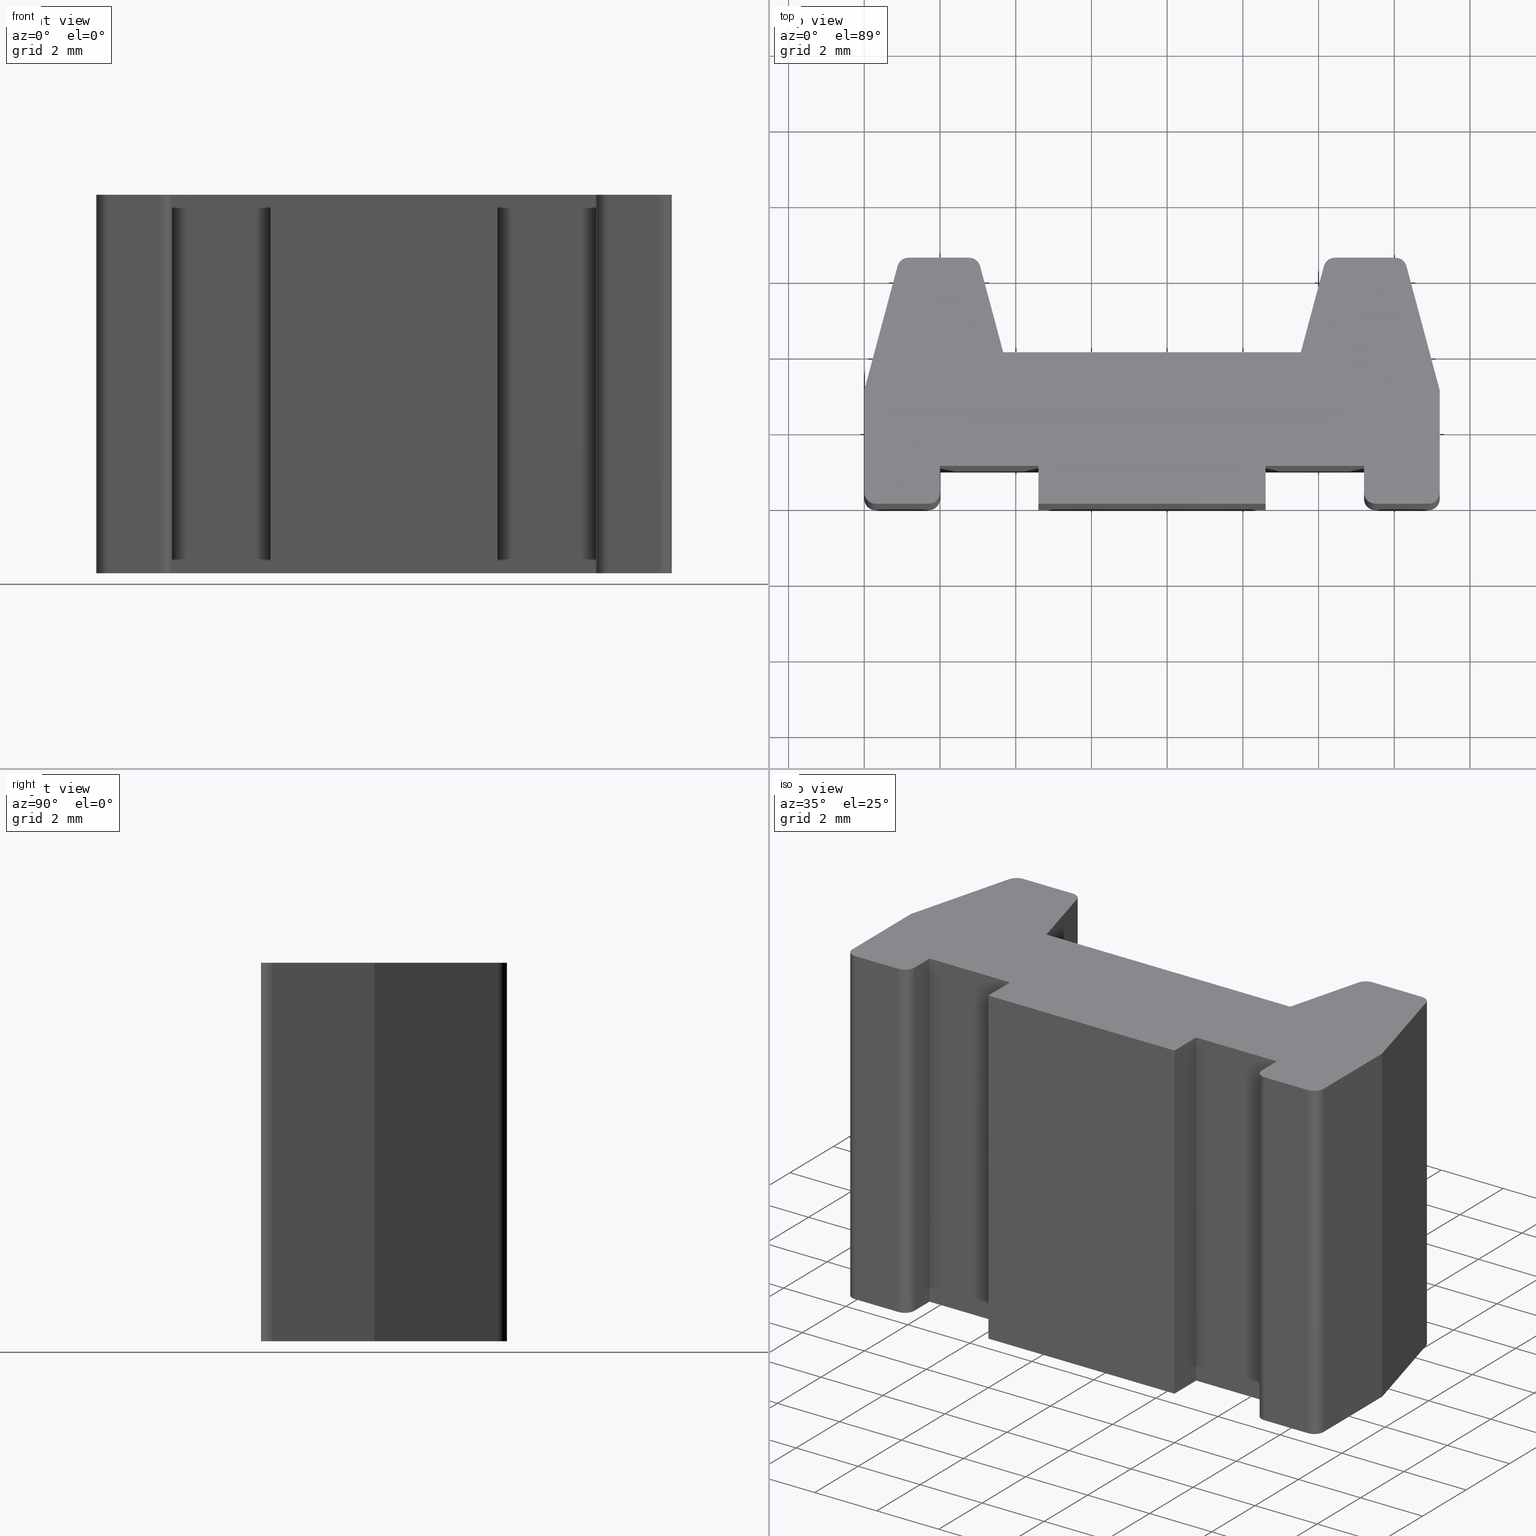
[diagram: canonical four-view strip — front | top / right | iso, engineering-drawing reading convention]
A machine part, canonical four-view strip (front | top / right | iso — engineering-drawing reading convention). The complete STEP part file that produces these views, byte-faithful:
ISO-10303-21;
HEADER;
/* Generated by software containing ST-Developer
 * from STEP Tools, Inc. (www.steptools.com) 
 */

FILE_DESCRIPTION(
/* description */ (''),
/* implementation_level */ '2;1');

FILE_NAME(
/* name */ 'E_3_01_10_05_00_WKZ-0094.stp',
/* time_stamp */ '2025-11-24T11:30:09+01:00',
/* author */ ('d.fischer'),
/* organization */ (''),
/* preprocessor_version */ 'ST-DEVELOPER v20',
/* originating_system */ 'Autodesk Inventor 2025',
/* authorisation */ '');

FILE_SCHEMA (('AUTOMOTIVE_DESIGN { 1 0 10303 214 3 1 1 }'));
ENDSEC;

DATA;
#10=MECHANICAL_DESIGN_GEOMETRIC_PRESENTATION_REPRESENTATION('',(#13),#934);
#11=SHAPE_REPRESENTATION_RELATIONSHIP('SRR','None',#941,#12);
#12=ADVANCED_BREP_SHAPE_REPRESENTATION('',(#14),#933);
#13=STYLED_ITEM('',(#950),#14);
#14=MANIFOLD_SOLID_BREP('Volumenk\X\F6rper1',#553);
#15=PLANE('',#579);
#16=PLANE('',#587);
#17=PLANE('',#592);
#18=PLANE('',#597);
#19=PLANE('',#600);
#20=PLANE('',#603);
#21=PLANE('',#606);
#22=PLANE('',#607);
#23=PLANE('',#608);
#24=PLANE('',#609);
#25=PLANE('',#610);
#26=PLANE('',#611);
#27=PLANE('',#612);
#28=PLANE('',#613);
#29=PLANE('',#614);
#30=PLANE('',#615);
#31=PLANE('',#616);
#32=PLANE('',#617);
#33=PLANE('',#618);
#34=PLANE('',#619);
#35=FACE_OUTER_BOUND('',#63,.T.);
#36=FACE_OUTER_BOUND('',#64,.T.);
#37=FACE_OUTER_BOUND('',#65,.T.);
#38=FACE_OUTER_BOUND('',#66,.T.);
#39=FACE_OUTER_BOUND('',#67,.T.);
#40=FACE_OUTER_BOUND('',#68,.T.);
#41=FACE_OUTER_BOUND('',#69,.T.);
#42=FACE_OUTER_BOUND('',#70,.T.);
#43=FACE_OUTER_BOUND('',#71,.T.);
#44=FACE_OUTER_BOUND('',#72,.T.);
#45=FACE_OUTER_BOUND('',#73,.T.);
#46=FACE_OUTER_BOUND('',#74,.T.);
#47=FACE_OUTER_BOUND('',#75,.T.);
#48=FACE_OUTER_BOUND('',#76,.T.);
#49=FACE_OUTER_BOUND('',#77,.T.);
#50=FACE_OUTER_BOUND('',#78,.T.);
#51=FACE_OUTER_BOUND('',#79,.T.);
#52=FACE_OUTER_BOUND('',#80,.T.);
#53=FACE_OUTER_BOUND('',#81,.T.);
#54=FACE_OUTER_BOUND('',#82,.T.);
#55=FACE_OUTER_BOUND('',#83,.T.);
#56=FACE_OUTER_BOUND('',#84,.T.);
#57=FACE_OUTER_BOUND('',#85,.T.);
#58=FACE_OUTER_BOUND('',#86,.T.);
#59=FACE_OUTER_BOUND('',#87,.T.);
#60=FACE_OUTER_BOUND('',#88,.T.);
#61=FACE_OUTER_BOUND('',#89,.T.);
#62=FACE_OUTER_BOUND('',#90,.T.);
#63=EDGE_LOOP('',(#361,#362,#363,#364));
#64=EDGE_LOOP('',(#365,#366,#367,#368,#369,#370,#371,#372,#373,#374,#375,
#376,#377,#378,#379,#380,#381,#382,#383,#384,#385,#386,#387,#388,#389,#390));
#65=EDGE_LOOP('',(#391,#392,#393,#394));
#66=EDGE_LOOP('',(#395,#396,#397,#398));
#67=EDGE_LOOP('',(#399,#400,#401,#402));
#68=EDGE_LOOP('',(#403,#404,#405,#406));
#69=EDGE_LOOP('',(#407,#408,#409,#410));
#70=EDGE_LOOP('',(#411,#412,#413,#414));
#71=EDGE_LOOP('',(#415,#416,#417,#418));
#72=EDGE_LOOP('',(#419,#420,#421,#422));
#73=EDGE_LOOP('',(#423,#424,#425,#426));
#74=EDGE_LOOP('',(#427,#428,#429,#430));
#75=EDGE_LOOP('',(#431,#432,#433,#434));
#76=EDGE_LOOP('',(#435,#436,#437,#438));
#77=EDGE_LOOP('',(#439,#440,#441,#442));
#78=EDGE_LOOP('',(#443,#444,#445,#446));
#79=EDGE_LOOP('',(#447,#448,#449,#450));
#80=EDGE_LOOP('',(#451,#452,#453,#454));
#81=EDGE_LOOP('',(#455,#456,#457,#458));
#82=EDGE_LOOP('',(#459,#460,#461,#462));
#83=EDGE_LOOP('',(#463,#464,#465,#466));
#84=EDGE_LOOP('',(#467,#468,#469,#470));
#85=EDGE_LOOP('',(#471,#472,#473,#474));
#86=EDGE_LOOP('',(#475,#476,#477,#478));
#87=EDGE_LOOP('',(#479,#480,#481,#482));
#88=EDGE_LOOP('',(#483,#484,#485,#486));
#89=EDGE_LOOP('',(#487,#488,#489,#490));
#90=EDGE_LOOP('',(#491,#492,#493,#494,#495,#496,#497,#498,#499,#500,#501,
#502,#503,#504,#505,#506,#507,#508,#509,#510,#511,#512,#513,#514,#515,#516));
#91=LINE('',#778,#153);
#92=LINE('',#781,#154);
#93=LINE('',#784,#155);
#94=LINE('',#788,#156);
#95=LINE('',#790,#157);
#96=LINE('',#794,#158);
#97=LINE('',#798,#159);
#98=LINE('',#800,#160);
#99=LINE('',#802,#161);
#100=LINE('',#806,#162);
#101=LINE('',#810,#163);
#102=LINE('',#812,#164);
#103=LINE('',#816,#165);
#104=LINE('',#820,#166);
#105=LINE('',#822,#167);
#106=LINE('',#824,#168);
#107=LINE('',#826,#169);
#108=LINE('',#828,#170);
#109=LINE('',#830,#171);
#110=LINE('',#831,#172);
#111=LINE('',#834,#173);
#112=LINE('',#835,#174);
#113=LINE('',#839,#175);
#114=LINE('',#844,#176);
#115=LINE('',#845,#177);
#116=LINE('',#848,#178);
#117=LINE('',#849,#179);
#118=LINE('',#853,#180);
#119=LINE('',#858,#181);
#120=LINE('',#859,#182);
#121=LINE('',#862,#183);
#122=LINE('',#863,#184);
#123=LINE('',#867,#185);
#124=LINE('',#870,#186);
#125=LINE('',#871,#187);
#126=LINE('',#876,#188);
#127=LINE('',#877,#189);
#128=LINE('',#880,#190);
#129=LINE('',#881,#191);
#130=LINE('',#885,#192);
#131=LINE('',#888,#193);
#132=LINE('',#889,#194);
#133=LINE('',#891,#195);
#134=LINE('',#894,#196);
#135=LINE('',#895,#197);
#136=LINE('',#897,#198);
#137=LINE('',#900,#199);
#138=LINE('',#901,#200);
#139=LINE('',#903,#201);
#140=LINE('',#906,#202);
#141=LINE('',#907,#203);
#142=LINE('',#910,#204);
#143=LINE('',#911,#205);
#144=LINE('',#914,#206);
#145=LINE('',#915,#207);
#146=LINE('',#918,#208);
#147=LINE('',#919,#209);
#148=LINE('',#922,#210);
#149=LINE('',#923,#211);
#150=LINE('',#926,#212);
#151=LINE('',#927,#213);
#152=LINE('',#929,#214);
#153=VECTOR('',#626,10.);
#154=VECTOR('',#629,10.);
#155=VECTOR('',#632,10.);
#156=VECTOR('',#635,10.);
#157=VECTOR('',#636,10.);
#158=VECTOR('',#639,10.);
#159=VECTOR('',#642,10.);
#160=VECTOR('',#643,10.);
#161=VECTOR('',#644,10.);
#162=VECTOR('',#647,10.);
#163=VECTOR('',#650,10.);
#164=VECTOR('',#651,10.);
#165=VECTOR('',#654,10.);
#166=VECTOR('',#657,10.);
#167=VECTOR('',#658,10.);
#168=VECTOR('',#659,10.);
#169=VECTOR('',#660,10.);
#170=VECTOR('',#661,10.);
#171=VECTOR('',#662,10.);
#172=VECTOR('',#663,10.);
#173=VECTOR('',#666,10.);
#174=VECTOR('',#667,10.);
#175=VECTOR('',#672,10.);
#176=VECTOR('',#677,10.);
#177=VECTOR('',#678,10.);
#178=VECTOR('',#681,10.);
#179=VECTOR('',#682,10.);
#180=VECTOR('',#687,10.);
#181=VECTOR('',#692,10.);
#182=VECTOR('',#693,10.);
#183=VECTOR('',#696,10.);
#184=VECTOR('',#697,10.);
#185=VECTOR('',#702,10.);
#186=VECTOR('',#705,10.);
#187=VECTOR('',#706,10.);
#188=VECTOR('',#711,10.);
#189=VECTOR('',#712,10.);
#190=VECTOR('',#715,10.);
#191=VECTOR('',#716,10.);
#192=VECTOR('',#721,10.);
#193=VECTOR('',#724,10.);
#194=VECTOR('',#725,10.);
#195=VECTOR('',#728,10.);
#196=VECTOR('',#731,10.);
#197=VECTOR('',#732,10.);
#198=VECTOR('',#735,10.);
#199=VECTOR('',#738,10.);
#200=VECTOR('',#739,10.);
#201=VECTOR('',#742,10.);
#202=VECTOR('',#745,10.);
#203=VECTOR('',#746,10.);
#204=VECTOR('',#749,10.);
#205=VECTOR('',#750,10.);
#206=VECTOR('',#753,10.);
#207=VECTOR('',#754,10.);
#208=VECTOR('',#757,10.);
#209=VECTOR('',#758,10.);
#210=VECTOR('',#761,10.);
#211=VECTOR('',#762,10.);
#212=VECTOR('',#765,10.);
#213=VECTOR('',#766,10.);
#214=VECTOR('',#769,10.);
#215=CIRCLE('',#577,0.3);
#216=CIRCLE('',#578,0.3);
#217=CIRCLE('',#580,0.3);
#218=CIRCLE('',#581,0.3);
#219=CIRCLE('',#582,0.3);
#220=CIRCLE('',#583,0.3);
#221=CIRCLE('',#584,0.3);
#222=CIRCLE('',#585,0.3);
#223=CIRCLE('',#586,0.3);
#224=CIRCLE('',#589,0.3);
#225=CIRCLE('',#591,0.3);
#226=CIRCLE('',#594,0.3);
#227=CIRCLE('',#596,0.3);
#228=CIRCLE('',#599,0.3);
#229=CIRCLE('',#602,0.3);
#230=CIRCLE('',#605,0.3);
#231=VERTEX_POINT('',#774);
#232=VERTEX_POINT('',#775);
#233=VERTEX_POINT('',#777);
#234=VERTEX_POINT('',#779);
#235=VERTEX_POINT('',#783);
#236=VERTEX_POINT('',#785);
#237=VERTEX_POINT('',#787);
#238=VERTEX_POINT('',#789);
#239=VERTEX_POINT('',#791);
#240=VERTEX_POINT('',#793);
#241=VERTEX_POINT('',#795);
#242=VERTEX_POINT('',#797);
#243=VERTEX_POINT('',#799);
#244=VERTEX_POINT('',#801);
#245=VERTEX_POINT('',#803);
#246=VERTEX_POINT('',#805);
#247=VERTEX_POINT('',#807);
#248=VERTEX_POINT('',#809);
#249=VERTEX_POINT('',#811);
#250=VERTEX_POINT('',#813);
#251=VERTEX_POINT('',#815);
#252=VERTEX_POINT('',#817);
#253=VERTEX_POINT('',#819);
#254=VERTEX_POINT('',#821);
#255=VERTEX_POINT('',#823);
#256=VERTEX_POINT('',#825);
#257=VERTEX_POINT('',#827);
#258=VERTEX_POINT('',#829);
#259=VERTEX_POINT('',#833);
#260=VERTEX_POINT('',#837);
#261=VERTEX_POINT('',#841);
#262=VERTEX_POINT('',#842);
#263=VERTEX_POINT('',#847);
#264=VERTEX_POINT('',#851);
#265=VERTEX_POINT('',#855);
#266=VERTEX_POINT('',#856);
#267=VERTEX_POINT('',#861);
#268=VERTEX_POINT('',#865);
#269=VERTEX_POINT('',#869);
#270=VERTEX_POINT('',#873);
#271=VERTEX_POINT('',#874);
#272=VERTEX_POINT('',#879);
#273=VERTEX_POINT('',#883);
#274=VERTEX_POINT('',#887);
#275=VERTEX_POINT('',#893);
#276=VERTEX_POINT('',#899);
#277=VERTEX_POINT('',#905);
#278=VERTEX_POINT('',#909);
#279=VERTEX_POINT('',#913);
#280=VERTEX_POINT('',#917);
#281=VERTEX_POINT('',#921);
#282=VERTEX_POINT('',#925);
#283=EDGE_CURVE('',#231,#232,#215,.T.);
#284=EDGE_CURVE('',#232,#233,#91,.T.);
#285=EDGE_CURVE('',#233,#234,#216,.T.);
#286=EDGE_CURVE('',#234,#231,#92,.T.);
#287=EDGE_CURVE('',#235,#233,#93,.T.);
#288=EDGE_CURVE('',#236,#235,#217,.T.);
#289=EDGE_CURVE('',#237,#236,#94,.T.);
#290=EDGE_CURVE('',#238,#237,#95,.T.);
#291=EDGE_CURVE('',#239,#238,#218,.T.);
#292=EDGE_CURVE('',#240,#239,#96,.T.);
#293=EDGE_CURVE('',#241,#240,#219,.T.);
#294=EDGE_CURVE('',#242,#241,#97,.T.);
#295=EDGE_CURVE('',#243,#242,#98,.T.);
#296=EDGE_CURVE('',#244,#243,#99,.T.);
#297=EDGE_CURVE('',#245,#244,#220,.T.);
#298=EDGE_CURVE('',#246,#245,#100,.T.);
#299=EDGE_CURVE('',#247,#246,#221,.T.);
#300=EDGE_CURVE('',#248,#247,#101,.T.);
#301=EDGE_CURVE('',#249,#248,#102,.T.);
#302=EDGE_CURVE('',#250,#249,#222,.T.);
#303=EDGE_CURVE('',#251,#250,#103,.T.);
#304=EDGE_CURVE('',#252,#251,#223,.T.);
#305=EDGE_CURVE('',#253,#252,#104,.T.);
#306=EDGE_CURVE('',#254,#253,#105,.T.);
#307=EDGE_CURVE('',#255,#254,#106,.T.);
#308=EDGE_CURVE('',#256,#255,#107,.T.);
#309=EDGE_CURVE('',#257,#256,#108,.T.);
#310=EDGE_CURVE('',#258,#257,#109,.T.);
#311=EDGE_CURVE('',#234,#258,#110,.T.);
#312=EDGE_CURVE('',#232,#259,#111,.T.);
#313=EDGE_CURVE('',#235,#259,#112,.T.);
#314=EDGE_CURVE('',#259,#260,#224,.T.);
#315=EDGE_CURVE('',#260,#236,#113,.T.);
#316=EDGE_CURVE('',#261,#262,#225,.T.);
#317=EDGE_CURVE('',#262,#250,#114,.T.);
#318=EDGE_CURVE('',#249,#261,#115,.T.);
#319=EDGE_CURVE('',#262,#263,#116,.T.);
#320=EDGE_CURVE('',#251,#263,#117,.T.);
#321=EDGE_CURVE('',#263,#264,#226,.T.);
#322=EDGE_CURVE('',#264,#252,#118,.T.);
#323=EDGE_CURVE('',#265,#266,#227,.T.);
#324=EDGE_CURVE('',#266,#247,#119,.T.);
#325=EDGE_CURVE('',#246,#265,#120,.T.);
#326=EDGE_CURVE('',#267,#245,#121,.T.);
#327=EDGE_CURVE('',#267,#265,#122,.T.);
#328=EDGE_CURVE('',#268,#267,#228,.T.);
#329=EDGE_CURVE('',#244,#268,#123,.T.);
#330=EDGE_CURVE('',#243,#269,#124,.T.);
#331=EDGE_CURVE('',#269,#268,#125,.T.);
#332=EDGE_CURVE('',#270,#271,#229,.T.);
#333=EDGE_CURVE('',#271,#241,#126,.T.);
#334=EDGE_CURVE('',#240,#270,#127,.T.);
#335=EDGE_CURVE('',#272,#239,#128,.T.);
#336=EDGE_CURVE('',#272,#270,#129,.T.);
#337=EDGE_CURVE('',#273,#272,#230,.T.);
#338=EDGE_CURVE('',#238,#273,#130,.T.);
#339=EDGE_CURVE('',#260,#274,#131,.T.);
#340=EDGE_CURVE('',#237,#274,#132,.T.);
#341=EDGE_CURVE('',#274,#273,#133,.T.);
#342=EDGE_CURVE('',#271,#275,#134,.T.);
#343=EDGE_CURVE('',#242,#275,#135,.T.);
#344=EDGE_CURVE('',#275,#269,#136,.T.);
#345=EDGE_CURVE('',#266,#276,#137,.T.);
#346=EDGE_CURVE('',#248,#276,#138,.T.);
#347=EDGE_CURVE('',#276,#261,#139,.T.);
#348=EDGE_CURVE('',#264,#277,#140,.T.);
#349=EDGE_CURVE('',#253,#277,#141,.T.);
#350=EDGE_CURVE('',#277,#278,#142,.T.);
#351=EDGE_CURVE('',#254,#278,#143,.T.);
#352=EDGE_CURVE('',#278,#279,#144,.T.);
#353=EDGE_CURVE('',#255,#279,#145,.T.);
#354=EDGE_CURVE('',#279,#280,#146,.T.);
#355=EDGE_CURVE('',#256,#280,#147,.T.);
#356=EDGE_CURVE('',#280,#281,#148,.T.);
#357=EDGE_CURVE('',#257,#281,#149,.T.);
#358=EDGE_CURVE('',#281,#282,#150,.T.);
#359=EDGE_CURVE('',#258,#282,#151,.T.);
#360=EDGE_CURVE('',#282,#231,#152,.T.);
#361=ORIENTED_EDGE('',*,*,#283,.T.);
#362=ORIENTED_EDGE('',*,*,#284,.T.);
#363=ORIENTED_EDGE('',*,*,#285,.T.);
#364=ORIENTED_EDGE('',*,*,#286,.T.);
#365=ORIENTED_EDGE('',*,*,#285,.F.);
#366=ORIENTED_EDGE('',*,*,#287,.F.);
#367=ORIENTED_EDGE('',*,*,#288,.F.);
#368=ORIENTED_EDGE('',*,*,#289,.F.);
#369=ORIENTED_EDGE('',*,*,#290,.F.);
#370=ORIENTED_EDGE('',*,*,#291,.F.);
#371=ORIENTED_EDGE('',*,*,#292,.F.);
#372=ORIENTED_EDGE('',*,*,#293,.F.);
#373=ORIENTED_EDGE('',*,*,#294,.F.);
#374=ORIENTED_EDGE('',*,*,#295,.F.);
#375=ORIENTED_EDGE('',*,*,#296,.F.);
#376=ORIENTED_EDGE('',*,*,#297,.F.);
#377=ORIENTED_EDGE('',*,*,#298,.F.);
#378=ORIENTED_EDGE('',*,*,#299,.F.);
#379=ORIENTED_EDGE('',*,*,#300,.F.);
#380=ORIENTED_EDGE('',*,*,#301,.F.);
#381=ORIENTED_EDGE('',*,*,#302,.F.);
#382=ORIENTED_EDGE('',*,*,#303,.F.);
#383=ORIENTED_EDGE('',*,*,#304,.F.);
#384=ORIENTED_EDGE('',*,*,#305,.F.);
#385=ORIENTED_EDGE('',*,*,#306,.F.);
#386=ORIENTED_EDGE('',*,*,#307,.F.);
#387=ORIENTED_EDGE('',*,*,#308,.F.);
#388=ORIENTED_EDGE('',*,*,#309,.F.);
#389=ORIENTED_EDGE('',*,*,#310,.F.);
#390=ORIENTED_EDGE('',*,*,#311,.F.);
#391=ORIENTED_EDGE('',*,*,#284,.F.);
#392=ORIENTED_EDGE('',*,*,#312,.T.);
#393=ORIENTED_EDGE('',*,*,#313,.F.);
#394=ORIENTED_EDGE('',*,*,#287,.T.);
#395=ORIENTED_EDGE('',*,*,#314,.T.);
#396=ORIENTED_EDGE('',*,*,#315,.T.);
#397=ORIENTED_EDGE('',*,*,#288,.T.);
#398=ORIENTED_EDGE('',*,*,#313,.T.);
#399=ORIENTED_EDGE('',*,*,#316,.T.);
#400=ORIENTED_EDGE('',*,*,#317,.T.);
#401=ORIENTED_EDGE('',*,*,#302,.T.);
#402=ORIENTED_EDGE('',*,*,#318,.T.);
#403=ORIENTED_EDGE('',*,*,#317,.F.);
#404=ORIENTED_EDGE('',*,*,#319,.T.);
#405=ORIENTED_EDGE('',*,*,#320,.F.);
#406=ORIENTED_EDGE('',*,*,#303,.T.);
#407=ORIENTED_EDGE('',*,*,#321,.T.);
#408=ORIENTED_EDGE('',*,*,#322,.T.);
#409=ORIENTED_EDGE('',*,*,#304,.T.);
#410=ORIENTED_EDGE('',*,*,#320,.T.);
#411=ORIENTED_EDGE('',*,*,#323,.T.);
#412=ORIENTED_EDGE('',*,*,#324,.T.);
#413=ORIENTED_EDGE('',*,*,#299,.T.);
#414=ORIENTED_EDGE('',*,*,#325,.T.);
#415=ORIENTED_EDGE('',*,*,#325,.F.);
#416=ORIENTED_EDGE('',*,*,#298,.T.);
#417=ORIENTED_EDGE('',*,*,#326,.F.);
#418=ORIENTED_EDGE('',*,*,#327,.T.);
#419=ORIENTED_EDGE('',*,*,#328,.T.);
#420=ORIENTED_EDGE('',*,*,#326,.T.);
#421=ORIENTED_EDGE('',*,*,#297,.T.);
#422=ORIENTED_EDGE('',*,*,#329,.T.);
#423=ORIENTED_EDGE('',*,*,#329,.F.);
#424=ORIENTED_EDGE('',*,*,#296,.T.);
#425=ORIENTED_EDGE('',*,*,#330,.T.);
#426=ORIENTED_EDGE('',*,*,#331,.T.);
#427=ORIENTED_EDGE('',*,*,#332,.T.);
#428=ORIENTED_EDGE('',*,*,#333,.T.);
#429=ORIENTED_EDGE('',*,*,#293,.T.);
#430=ORIENTED_EDGE('',*,*,#334,.T.);
#431=ORIENTED_EDGE('',*,*,#334,.F.);
#432=ORIENTED_EDGE('',*,*,#292,.T.);
#433=ORIENTED_EDGE('',*,*,#335,.F.);
#434=ORIENTED_EDGE('',*,*,#336,.T.);
#435=ORIENTED_EDGE('',*,*,#337,.T.);
#436=ORIENTED_EDGE('',*,*,#335,.T.);
#437=ORIENTED_EDGE('',*,*,#291,.T.);
#438=ORIENTED_EDGE('',*,*,#338,.T.);
#439=ORIENTED_EDGE('',*,*,#315,.F.);
#440=ORIENTED_EDGE('',*,*,#339,.T.);
#441=ORIENTED_EDGE('',*,*,#340,.F.);
#442=ORIENTED_EDGE('',*,*,#289,.T.);
#443=ORIENTED_EDGE('',*,*,#338,.F.);
#444=ORIENTED_EDGE('',*,*,#290,.T.);
#445=ORIENTED_EDGE('',*,*,#340,.T.);
#446=ORIENTED_EDGE('',*,*,#341,.T.);
#447=ORIENTED_EDGE('',*,*,#333,.F.);
#448=ORIENTED_EDGE('',*,*,#342,.T.);
#449=ORIENTED_EDGE('',*,*,#343,.F.);
#450=ORIENTED_EDGE('',*,*,#294,.T.);
#451=ORIENTED_EDGE('',*,*,#344,.T.);
#452=ORIENTED_EDGE('',*,*,#330,.F.);
#453=ORIENTED_EDGE('',*,*,#295,.T.);
#454=ORIENTED_EDGE('',*,*,#343,.T.);
#455=ORIENTED_EDGE('',*,*,#324,.F.);
#456=ORIENTED_EDGE('',*,*,#345,.T.);
#457=ORIENTED_EDGE('',*,*,#346,.F.);
#458=ORIENTED_EDGE('',*,*,#300,.T.);
#459=ORIENTED_EDGE('',*,*,#318,.F.);
#460=ORIENTED_EDGE('',*,*,#301,.T.);
#461=ORIENTED_EDGE('',*,*,#346,.T.);
#462=ORIENTED_EDGE('',*,*,#347,.T.);
#463=ORIENTED_EDGE('',*,*,#322,.F.);
#464=ORIENTED_EDGE('',*,*,#348,.T.);
#465=ORIENTED_EDGE('',*,*,#349,.F.);
#466=ORIENTED_EDGE('',*,*,#305,.T.);
#467=ORIENTED_EDGE('',*,*,#350,.T.);
#468=ORIENTED_EDGE('',*,*,#351,.F.);
#469=ORIENTED_EDGE('',*,*,#306,.T.);
#470=ORIENTED_EDGE('',*,*,#349,.T.);
#471=ORIENTED_EDGE('',*,*,#352,.T.);
#472=ORIENTED_EDGE('',*,*,#353,.F.);
#473=ORIENTED_EDGE('',*,*,#307,.T.);
#474=ORIENTED_EDGE('',*,*,#351,.T.);
#475=ORIENTED_EDGE('',*,*,#354,.T.);
#476=ORIENTED_EDGE('',*,*,#355,.F.);
#477=ORIENTED_EDGE('',*,*,#308,.T.);
#478=ORIENTED_EDGE('',*,*,#353,.T.);
#479=ORIENTED_EDGE('',*,*,#356,.T.);
#480=ORIENTED_EDGE('',*,*,#357,.F.);
#481=ORIENTED_EDGE('',*,*,#309,.T.);
#482=ORIENTED_EDGE('',*,*,#355,.T.);
#483=ORIENTED_EDGE('',*,*,#358,.T.);
#484=ORIENTED_EDGE('',*,*,#359,.F.);
#485=ORIENTED_EDGE('',*,*,#310,.T.);
#486=ORIENTED_EDGE('',*,*,#357,.T.);
#487=ORIENTED_EDGE('',*,*,#286,.F.);
#488=ORIENTED_EDGE('',*,*,#311,.T.);
#489=ORIENTED_EDGE('',*,*,#359,.T.);
#490=ORIENTED_EDGE('',*,*,#360,.T.);
#491=ORIENTED_EDGE('',*,*,#283,.F.);
#492=ORIENTED_EDGE('',*,*,#360,.F.);
#493=ORIENTED_EDGE('',*,*,#358,.F.);
#494=ORIENTED_EDGE('',*,*,#356,.F.);
#495=ORIENTED_EDGE('',*,*,#354,.F.);
#496=ORIENTED_EDGE('',*,*,#352,.F.);
#497=ORIENTED_EDGE('',*,*,#350,.F.);
#498=ORIENTED_EDGE('',*,*,#348,.F.);
#499=ORIENTED_EDGE('',*,*,#321,.F.);
#500=ORIENTED_EDGE('',*,*,#319,.F.);
#501=ORIENTED_EDGE('',*,*,#316,.F.);
#502=ORIENTED_EDGE('',*,*,#347,.F.);
#503=ORIENTED_EDGE('',*,*,#345,.F.);
#504=ORIENTED_EDGE('',*,*,#323,.F.);
#505=ORIENTED_EDGE('',*,*,#327,.F.);
#506=ORIENTED_EDGE('',*,*,#328,.F.);
#507=ORIENTED_EDGE('',*,*,#331,.F.);
#508=ORIENTED_EDGE('',*,*,#344,.F.);
#509=ORIENTED_EDGE('',*,*,#342,.F.);
#510=ORIENTED_EDGE('',*,*,#332,.F.);
#511=ORIENTED_EDGE('',*,*,#336,.F.);
#512=ORIENTED_EDGE('',*,*,#337,.F.);
#513=ORIENTED_EDGE('',*,*,#341,.F.);
#514=ORIENTED_EDGE('',*,*,#339,.F.);
#515=ORIENTED_EDGE('',*,*,#314,.F.);
#516=ORIENTED_EDGE('',*,*,#312,.F.);
#517=CYLINDRICAL_SURFACE('',#576,0.3);
#518=CYLINDRICAL_SURFACE('',#588,0.3);
#519=CYLINDRICAL_SURFACE('',#590,0.3);
#520=CYLINDRICAL_SURFACE('',#593,0.3);
#521=CYLINDRICAL_SURFACE('',#595,0.3);
#522=CYLINDRICAL_SURFACE('',#598,0.3);
#523=CYLINDRICAL_SURFACE('',#601,0.3);
#524=CYLINDRICAL_SURFACE('',#604,0.3);
#525=ADVANCED_FACE('',(#35),#517,.T.);
#526=ADVANCED_FACE('',(#36),#15,.F.);
#527=ADVANCED_FACE('',(#37),#16,.T.);
#528=ADVANCED_FACE('',(#38),#518,.T.);
#529=ADVANCED_FACE('',(#39),#519,.T.);
#530=ADVANCED_FACE('',(#40),#17,.T.);
#531=ADVANCED_FACE('',(#41),#520,.T.);
#532=ADVANCED_FACE('',(#42),#521,.T.);
#533=ADVANCED_FACE('',(#43),#18,.T.);
#534=ADVANCED_FACE('',(#44),#522,.T.);
#535=ADVANCED_FACE('',(#45),#19,.T.);
#536=ADVANCED_FACE('',(#46),#523,.T.);
#537=ADVANCED_FACE('',(#47),#20,.T.);
#538=ADVANCED_FACE('',(#48),#524,.T.);
#539=ADVANCED_FACE('',(#49),#21,.T.);
#540=ADVANCED_FACE('',(#50),#22,.T.);
#541=ADVANCED_FACE('',(#51),#23,.T.);
#542=ADVANCED_FACE('',(#52),#24,.T.);
#543=ADVANCED_FACE('',(#53),#25,.T.);
#544=ADVANCED_FACE('',(#54),#26,.T.);
#545=ADVANCED_FACE('',(#55),#27,.T.);
#546=ADVANCED_FACE('',(#56),#28,.T.);
#547=ADVANCED_FACE('',(#57),#29,.T.);
#548=ADVANCED_FACE('',(#58),#30,.T.);
#549=ADVANCED_FACE('',(#59),#31,.T.);
#550=ADVANCED_FACE('',(#60),#32,.T.);
#551=ADVANCED_FACE('',(#61),#33,.T.);
#552=ADVANCED_FACE('',(#62),#34,.T.);
#553=CLOSED_SHELL('',(#525,#526,#527,#528,#529,#530,#531,#532,#533,#534,
#535,#536,#537,#538,#539,#540,#541,#542,#543,#544,#545,#546,#547,#548,#549,
#550,#551,#552));
#554=DERIVED_UNIT_ELEMENT(#557,1.);
#555=DERIVED_UNIT_ELEMENT(#936,-3.);
#556=DIMENSIONAL_EXPONENTS(0.,1.,0.,0.,0.,0.,0.);
#557=(
CONVERSION_BASED_UNIT('gram',#559)
MASS_UNIT()
NAMED_UNIT(#556)
);
#558=(
MASS_UNIT()
NAMED_UNIT(*)
SI_UNIT(.KILO.,.GRAM.)
);
#559=MASS_MEASURE_WITH_UNIT(MASS_MEASURE(0.001),#558);
#560=DERIVED_UNIT((#554,#555));
#561=MEASURE_REPRESENTATION_ITEM('density measure',
POSITIVE_RATIO_MEASURE(1.),#560);
#562=PROPERTY_DEFINITION_REPRESENTATION(#567,#564);
#563=PROPERTY_DEFINITION_REPRESENTATION(#568,#565);
#564=REPRESENTATION('material name',(#566),#933);
#565=REPRESENTATION('density',(#561),#933);
#566=DESCRIPTIVE_REPRESENTATION_ITEM('Allgemein','Allgemein');
#567=PROPERTY_DEFINITION('material property','material name',#943);
#568=PROPERTY_DEFINITION('material property','density of part',#943);
#569=DATE_TIME_ROLE('creation_date');
#570=APPLIED_DATE_AND_TIME_ASSIGNMENT(#571,#569,(#943));
#571=DATE_AND_TIME(#572,#573);
#572=CALENDAR_DATE(2011,11,11);
#573=LOCAL_TIME(0,0,0.,#574);
#574=COORDINATED_UNIVERSAL_TIME_OFFSET(0,0,.BEHIND.);
#575=AXIS2_PLACEMENT_3D('',#772,#620,#621);
#576=AXIS2_PLACEMENT_3D('',#773,#622,#623);
#577=AXIS2_PLACEMENT_3D('',#776,#624,#625);
#578=AXIS2_PLACEMENT_3D('',#780,#627,#628);
#579=AXIS2_PLACEMENT_3D('',#782,#630,#631);
#580=AXIS2_PLACEMENT_3D('',#786,#633,#634);
#581=AXIS2_PLACEMENT_3D('',#792,#637,#638);
#582=AXIS2_PLACEMENT_3D('',#796,#640,#641);
#583=AXIS2_PLACEMENT_3D('',#804,#645,#646);
#584=AXIS2_PLACEMENT_3D('',#808,#648,#649);
#585=AXIS2_PLACEMENT_3D('',#814,#652,#653);
#586=AXIS2_PLACEMENT_3D('',#818,#655,#656);
#587=AXIS2_PLACEMENT_3D('',#832,#664,#665);
#588=AXIS2_PLACEMENT_3D('',#836,#668,#669);
#589=AXIS2_PLACEMENT_3D('',#838,#670,#671);
#590=AXIS2_PLACEMENT_3D('',#840,#673,#674);
#591=AXIS2_PLACEMENT_3D('',#843,#675,#676);
#592=AXIS2_PLACEMENT_3D('',#846,#679,#680);
#593=AXIS2_PLACEMENT_3D('',#850,#683,#684);
#594=AXIS2_PLACEMENT_3D('',#852,#685,#686);
#595=AXIS2_PLACEMENT_3D('',#854,#688,#689);
#596=AXIS2_PLACEMENT_3D('',#857,#690,#691);
#597=AXIS2_PLACEMENT_3D('',#860,#694,#695);
#598=AXIS2_PLACEMENT_3D('',#864,#698,#699);
#599=AXIS2_PLACEMENT_3D('',#866,#700,#701);
#600=AXIS2_PLACEMENT_3D('',#868,#703,#704);
#601=AXIS2_PLACEMENT_3D('',#872,#707,#708);
#602=AXIS2_PLACEMENT_3D('',#875,#709,#710);
#603=AXIS2_PLACEMENT_3D('',#878,#713,#714);
#604=AXIS2_PLACEMENT_3D('',#882,#717,#718);
#605=AXIS2_PLACEMENT_3D('',#884,#719,#720);
#606=AXIS2_PLACEMENT_3D('',#886,#722,#723);
#607=AXIS2_PLACEMENT_3D('',#890,#726,#727);
#608=AXIS2_PLACEMENT_3D('',#892,#729,#730);
#609=AXIS2_PLACEMENT_3D('',#896,#733,#734);
#610=AXIS2_PLACEMENT_3D('',#898,#736,#737);
#611=AXIS2_PLACEMENT_3D('',#902,#740,#741);
#612=AXIS2_PLACEMENT_3D('',#904,#743,#744);
#613=AXIS2_PLACEMENT_3D('',#908,#747,#748);
#614=AXIS2_PLACEMENT_3D('',#912,#751,#752);
#615=AXIS2_PLACEMENT_3D('',#916,#755,#756);
#616=AXIS2_PLACEMENT_3D('',#920,#759,#760);
#617=AXIS2_PLACEMENT_3D('',#924,#763,#764);
#618=AXIS2_PLACEMENT_3D('',#928,#767,#768);
#619=AXIS2_PLACEMENT_3D('',#930,#770,#771);
#620=DIRECTION('axis',(0.,0.,1.));
#621=DIRECTION('refdir',(1.,0.,0.));
#622=DIRECTION('center_axis',(0.,0.,1.));
#623=DIRECTION('ref_axis',(0.707106781186547,-0.707106781186548,0.));
#624=DIRECTION('center_axis',(0.,0.,-1.));
#625=DIRECTION('ref_axis',(0.707106781186547,-0.707106781186548,0.));
#626=DIRECTION('',(0.,0.,-1.));
#627=DIRECTION('center_axis',(0.,0.,1.));
#628=DIRECTION('ref_axis',(0.707106781186547,-0.707106781186548,0.));
#629=DIRECTION('',(0.,0.,1.));
#630=DIRECTION('center_axis',(0.,0.,1.));
#631=DIRECTION('ref_axis',(1.,0.,0.));
#632=DIRECTION('',(1.,0.,0.));
#633=DIRECTION('center_axis',(0.,0.,1.));
#634=DIRECTION('ref_axis',(-0.707106781186548,-0.707106781186548,0.));
#635=DIRECTION('',(0.,-1.,0.));
#636=DIRECTION('',(-0.258819045102521,-0.965925826289068,0.));
#637=DIRECTION('center_axis',(0.,0.,1.));
#638=DIRECTION('ref_axis',(-0.60876142900872,0.793353340291235,0.));
#639=DIRECTION('',(-1.,5.38289951333409E-16,0.));
#640=DIRECTION('center_axis',(0.,0.,1.));
#641=DIRECTION('ref_axis',(0.60876142900872,0.793353340291235,0.));
#642=DIRECTION('',(-0.258819045102521,0.965925826289068,0.));
#643=DIRECTION('',(-1.,0.,0.));
#644=DIRECTION('',(-0.258819045102521,-0.965925826289068,0.));
#645=DIRECTION('center_axis',(0.,0.,1.));
#646=DIRECTION('ref_axis',(-0.608761429008722,0.793353340291234,0.));
#647=DIRECTION('',(-1.,0.,0.));
#648=DIRECTION('center_axis',(0.,0.,1.));
#649=DIRECTION('ref_axis',(0.608761429008722,0.793353340291234,0.));
#650=DIRECTION('',(-0.258819045102521,0.965925826289068,0.));
#651=DIRECTION('',(0.,1.,0.));
#652=DIRECTION('center_axis',(0.,0.,1.));
#653=DIRECTION('ref_axis',(0.707106781186545,-0.70710678118655,0.));
#654=DIRECTION('',(1.,0.,0.));
#655=DIRECTION('center_axis',(0.,0.,1.));
#656=DIRECTION('ref_axis',(-0.70710678118655,-0.707106781186545,0.));
#657=DIRECTION('',(0.,-1.,0.));
#658=DIRECTION('',(1.,0.,0.));
#659=DIRECTION('',(0.,1.,0.));
#660=DIRECTION('',(1.,0.,0.));
#661=DIRECTION('',(0.,-1.,0.));
#662=DIRECTION('',(1.,0.,0.));
#663=DIRECTION('',(-2.77555756156289E-16,1.,0.));
#664=DIRECTION('center_axis',(0.,-1.,0.));
#665=DIRECTION('ref_axis',(0.,0.,-1.));
#666=DIRECTION('',(-1.,0.,0.));
#667=DIRECTION('',(0.,0.,1.));
#668=DIRECTION('center_axis',(0.,0.,1.));
#669=DIRECTION('ref_axis',(-0.707106781186548,-0.707106781186548,0.));
#670=DIRECTION('center_axis',(0.,0.,-1.));
#671=DIRECTION('ref_axis',(-0.707106781186548,-0.707106781186548,0.));
#672=DIRECTION('',(0.,0.,-1.));
#673=DIRECTION('center_axis',(0.,0.,1.));
#674=DIRECTION('ref_axis',(0.707106781186545,-0.70710678118655,0.));
#675=DIRECTION('center_axis',(0.,0.,-1.));
#676=DIRECTION('ref_axis',(0.707106781186545,-0.70710678118655,0.));
#677=DIRECTION('',(0.,0.,-1.));
#678=DIRECTION('',(0.,0.,1.));
#679=DIRECTION('center_axis',(0.,-1.,0.));
#680=DIRECTION('ref_axis',(0.,0.,-1.));
#681=DIRECTION('',(-1.,0.,0.));
#682=DIRECTION('',(0.,0.,1.));
#683=DIRECTION('center_axis',(0.,0.,1.));
#684=DIRECTION('ref_axis',(-0.70710678118655,-0.707106781186545,0.));
#685=DIRECTION('center_axis',(0.,0.,-1.));
#686=DIRECTION('ref_axis',(-0.70710678118655,-0.707106781186545,0.));
#687=DIRECTION('',(0.,0.,-1.));
#688=DIRECTION('center_axis',(0.,0.,1.));
#689=DIRECTION('ref_axis',(0.608761429008722,0.793353340291234,0.));
#690=DIRECTION('center_axis',(0.,0.,-1.));
#691=DIRECTION('ref_axis',(0.608761429008722,0.793353340291234,0.));
#692=DIRECTION('',(0.,0.,-1.));
#693=DIRECTION('',(0.,0.,1.));
#694=DIRECTION('center_axis',(0.,1.,0.));
#695=DIRECTION('ref_axis',(0.,0.,1.));
#696=DIRECTION('',(0.,0.,-1.));
#697=DIRECTION('',(1.,0.,0.));
#698=DIRECTION('center_axis',(0.,0.,1.));
#699=DIRECTION('ref_axis',(-0.608761429008722,0.793353340291234,0.));
#700=DIRECTION('center_axis',(0.,0.,-1.));
#701=DIRECTION('ref_axis',(-0.608761429008722,0.793353340291234,0.));
#702=DIRECTION('',(0.,0.,1.));
#703=DIRECTION('center_axis',(-0.965925826289068,0.258819045102521,0.));
#704=DIRECTION('ref_axis',(0.,0.,1.));
#705=DIRECTION('',(0.,0.,1.));
#706=DIRECTION('',(0.258819045102521,0.965925826289068,0.));
#707=DIRECTION('center_axis',(0.,0.,1.));
#708=DIRECTION('ref_axis',(0.60876142900872,0.793353340291235,0.));
#709=DIRECTION('center_axis',(0.,0.,-1.));
#710=DIRECTION('ref_axis',(0.60876142900872,0.793353340291235,0.));
#711=DIRECTION('',(0.,0.,-1.));
#712=DIRECTION('',(0.,0.,1.));
#713=DIRECTION('center_axis',(5.38289951333409E-16,1.,0.));
#714=DIRECTION('ref_axis',(0.,0.,1.));
#715=DIRECTION('',(0.,0.,-1.));
#716=DIRECTION('',(1.,-5.38289951333409E-16,0.));
#717=DIRECTION('center_axis',(0.,0.,1.));
#718=DIRECTION('ref_axis',(-0.60876142900872,0.793353340291235,0.));
#719=DIRECTION('center_axis',(0.,0.,-1.));
#720=DIRECTION('ref_axis',(-0.60876142900872,0.793353340291235,0.));
#721=DIRECTION('',(0.,0.,1.));
#722=DIRECTION('center_axis',(-1.,0.,0.));
#723=DIRECTION('ref_axis',(0.,0.,1.));
#724=DIRECTION('',(0.,1.,0.));
#725=DIRECTION('',(0.,0.,1.));
#726=DIRECTION('center_axis',(-0.965925826289068,0.258819045102521,0.));
#727=DIRECTION('ref_axis',(0.,0.,1.));
#728=DIRECTION('',(0.258819045102521,0.965925826289068,0.));
#729=DIRECTION('center_axis',(0.965925826289068,0.258819045102521,0.));
#730=DIRECTION('ref_axis',(0.,0.,-1.));
#731=DIRECTION('',(0.258819045102521,-0.965925826289068,0.));
#732=DIRECTION('',(0.,0.,1.));
#733=DIRECTION('center_axis',(0.,1.,0.));
#734=DIRECTION('ref_axis',(0.,0.,1.));
#735=DIRECTION('',(1.,0.,0.));
#736=DIRECTION('center_axis',(0.965925826289068,0.258819045102521,0.));
#737=DIRECTION('ref_axis',(0.,0.,-1.));
#738=DIRECTION('',(0.258819045102521,-0.965925826289068,0.));
#739=DIRECTION('',(0.,0.,1.));
#740=DIRECTION('center_axis',(1.,0.,0.));
#741=DIRECTION('ref_axis',(0.,0.,-1.));
#742=DIRECTION('',(0.,-1.,0.));
#743=DIRECTION('center_axis',(-1.,0.,0.));
#744=DIRECTION('ref_axis',(0.,0.,1.));
#745=DIRECTION('',(0.,1.,0.));
#746=DIRECTION('',(0.,0.,1.));
#747=DIRECTION('center_axis',(0.,-1.,0.));
#748=DIRECTION('ref_axis',(0.,0.,-1.));
#749=DIRECTION('',(-1.,0.,0.));
#750=DIRECTION('',(0.,0.,1.));
#751=DIRECTION('center_axis',(1.,0.,0.));
#752=DIRECTION('ref_axis',(0.,0.,-1.));
#753=DIRECTION('',(0.,-1.,0.));
#754=DIRECTION('',(0.,0.,1.));
#755=DIRECTION('center_axis',(0.,-1.,0.));
#756=DIRECTION('ref_axis',(0.,0.,-1.));
#757=DIRECTION('',(-1.,0.,0.));
#758=DIRECTION('',(0.,0.,1.));
#759=DIRECTION('center_axis',(-1.,0.,0.));
#760=DIRECTION('ref_axis',(0.,0.,1.));
#761=DIRECTION('',(0.,1.,0.));
#762=DIRECTION('',(0.,0.,1.));
#763=DIRECTION('center_axis',(0.,-1.,0.));
#764=DIRECTION('ref_axis',(0.,0.,-1.));
#765=DIRECTION('',(-1.,0.,0.));
#766=DIRECTION('',(0.,0.,1.));
#767=DIRECTION('center_axis',(1.,2.77555756156289E-16,0.));
#768=DIRECTION('ref_axis',(0.,0.,-1.));
#769=DIRECTION('',(2.77555756156289E-16,-1.,0.));
#770=DIRECTION('center_axis',(0.,0.,1.));
#771=DIRECTION('ref_axis',(1.,0.,0.));
#772=CARTESIAN_POINT('',(0.,0.,0.));
#773=CARTESIAN_POINT('Origin',(1.7,0.3,0.));
#774=CARTESIAN_POINT('',(2.,0.3,10.));
#775=CARTESIAN_POINT('',(1.7,0.,10.));
#776=CARTESIAN_POINT('Origin',(1.7,0.3,10.));
#777=CARTESIAN_POINT('',(1.7,0.,0.));
#778=CARTESIAN_POINT('',(1.7,0.,0.));
#779=CARTESIAN_POINT('',(2.,0.3,0.));
#780=CARTESIAN_POINT('Origin',(1.7,0.3,0.));
#781=CARTESIAN_POINT('',(2.,0.3,0.));
#782=CARTESIAN_POINT('Origin',(7.60002491662712,2.7424703566666,0.));
#783=CARTESIAN_POINT('',(0.3,0.,0.));
#784=CARTESIAN_POINT('',(0.,0.,0.));
#785=CARTESIAN_POINT('',(0.,0.3,0.));
#786=CARTESIAN_POINT('Origin',(0.3,0.3,0.));
#787=CARTESIAN_POINT('',(0.,3.,0.));
#788=CARTESIAN_POINT('',(0.,3.,0.));
#789=CARTESIAN_POINT('',(0.878242522015897,6.27764571353076,0.));
#790=CARTESIAN_POINT('',(0.937822173508929,6.5,0.));
#791=CARTESIAN_POINT('',(1.16802026990262,6.5,0.));
#792=CARTESIAN_POINT('Origin',(1.16802026990262,6.2,0.));
#793=CARTESIAN_POINT('',(2.77012407711524,6.5,0.));
#794=CARTESIAN_POINT('',(3.00032217350893,6.5,0.));
#795=CARTESIAN_POINT('',(3.05990182500196,6.27764571353076,0.));
#796=CARTESIAN_POINT('Origin',(2.77012407711524,6.2,0.));
#797=CARTESIAN_POINT('',(3.67019515458674,4.,0.));
#798=CARTESIAN_POINT('',(3.67019515458674,4.,0.));
#799=CARTESIAN_POINT('',(11.5304491924311,4.,0.));
#800=CARTESIAN_POINT('',(11.5304491924311,4.,0.));
#801=CARTESIAN_POINT('',(12.1407425220159,6.27764571353076,0.));
#802=CARTESIAN_POINT('',(12.2003221735089,6.5,0.));
#803=CARTESIAN_POINT('',(12.4305202699026,6.5,0.));
#804=CARTESIAN_POINT('Origin',(12.4305202699026,6.2,0.));
#805=CARTESIAN_POINT('',(14.0319797300974,6.5,0.));
#806=CARTESIAN_POINT('',(14.2621778264911,6.5,0.));
#807=CARTESIAN_POINT('',(14.3217574779841,6.27764571353076,0.));
#808=CARTESIAN_POINT('Origin',(14.0319797300974,6.2,0.));
#809=CARTESIAN_POINT('',(15.2,3.,0.));
#810=CARTESIAN_POINT('',(15.2,3.,0.));
#811=CARTESIAN_POINT('',(15.2,0.3,0.));
#812=CARTESIAN_POINT('',(15.2,0.,0.));
#813=CARTESIAN_POINT('',(14.9,0.,0.));
#814=CARTESIAN_POINT('Origin',(14.9,0.3,0.));
#815=CARTESIAN_POINT('',(13.5,0.,0.));
#816=CARTESIAN_POINT('',(13.2,0.,0.));
#817=CARTESIAN_POINT('',(13.2,0.3,0.));
#818=CARTESIAN_POINT('Origin',(13.5,0.3,0.));
#819=CARTESIAN_POINT('',(13.2,1.,0.));
#820=CARTESIAN_POINT('',(13.2,1.,0.));
#821=CARTESIAN_POINT('',(10.6,1.,0.));
#822=CARTESIAN_POINT('',(10.6,1.,0.));
#823=CARTESIAN_POINT('',(10.6,0.,0.));
#824=CARTESIAN_POINT('',(10.6,0.,0.));
#825=CARTESIAN_POINT('',(4.6,0.,0.));
#826=CARTESIAN_POINT('',(4.6,0.,0.));
#827=CARTESIAN_POINT('',(4.6,1.,0.));
#828=CARTESIAN_POINT('',(4.6,1.,0.));
#829=CARTESIAN_POINT('',(2.,1.,0.));
#830=CARTESIAN_POINT('',(2.,1.,0.));
#831=CARTESIAN_POINT('',(2.,0.,0.));
#832=CARTESIAN_POINT('Origin',(2.,0.,0.));
#833=CARTESIAN_POINT('',(0.3,0.,10.));
#834=CARTESIAN_POINT('',(0.,0.,10.));
#835=CARTESIAN_POINT('',(0.3,0.,0.));
#836=CARTESIAN_POINT('Origin',(0.3,0.3,0.));
#837=CARTESIAN_POINT('',(0.,0.3,10.));
#838=CARTESIAN_POINT('Origin',(0.3,0.3,10.));
#839=CARTESIAN_POINT('',(0.,0.3,0.));
#840=CARTESIAN_POINT('Origin',(14.9,0.3,0.));
#841=CARTESIAN_POINT('',(15.2,0.3,10.));
#842=CARTESIAN_POINT('',(14.9,0.,10.));
#843=CARTESIAN_POINT('Origin',(14.9,0.3,10.));
#844=CARTESIAN_POINT('',(14.9,0.,0.));
#845=CARTESIAN_POINT('',(15.2,0.3,0.));
#846=CARTESIAN_POINT('Origin',(15.2,0.,0.));
#847=CARTESIAN_POINT('',(13.5,0.,10.));
#848=CARTESIAN_POINT('',(13.2,0.,10.));
#849=CARTESIAN_POINT('',(13.5,0.,0.));
#850=CARTESIAN_POINT('Origin',(13.5,0.3,0.));
#851=CARTESIAN_POINT('',(13.2,0.3,10.));
#852=CARTESIAN_POINT('Origin',(13.5,0.3,10.));
#853=CARTESIAN_POINT('',(13.2,0.3,0.));
#854=CARTESIAN_POINT('Origin',(14.0319797300974,6.2,0.));
#855=CARTESIAN_POINT('',(14.0319797300974,6.5,10.));
#856=CARTESIAN_POINT('',(14.3217574779841,6.27764571353076,10.));
#857=CARTESIAN_POINT('Origin',(14.0319797300974,6.2,10.));
#858=CARTESIAN_POINT('',(14.3217574779841,6.27764571353076,0.));
#859=CARTESIAN_POINT('',(14.0319797300974,6.5,0.));
#860=CARTESIAN_POINT('Origin',(12.2003221735089,6.5,0.));
#861=CARTESIAN_POINT('',(12.4305202699026,6.5,10.));
#862=CARTESIAN_POINT('',(12.4305202699026,6.5,0.));
#863=CARTESIAN_POINT('',(14.2621778264911,6.5,10.));
#864=CARTESIAN_POINT('Origin',(12.4305202699026,6.2,0.));
#865=CARTESIAN_POINT('',(12.1407425220159,6.27764571353076,10.));
#866=CARTESIAN_POINT('Origin',(12.4305202699026,6.2,10.));
#867=CARTESIAN_POINT('',(12.1407425220159,6.27764571353076,0.));
#868=CARTESIAN_POINT('Origin',(11.5304491924311,4.,0.));
#869=CARTESIAN_POINT('',(11.5304491924311,4.,10.));
#870=CARTESIAN_POINT('',(11.5304491924311,4.,0.));
#871=CARTESIAN_POINT('',(12.2003221735089,6.5,10.));
#872=CARTESIAN_POINT('Origin',(2.77012407711524,6.2,0.));
#873=CARTESIAN_POINT('',(2.77012407711524,6.5,10.));
#874=CARTESIAN_POINT('',(3.05990182500196,6.27764571353076,10.));
#875=CARTESIAN_POINT('Origin',(2.77012407711524,6.2,10.));
#876=CARTESIAN_POINT('',(3.05990182500196,6.27764571353076,0.));
#877=CARTESIAN_POINT('',(2.77012407711524,6.5,0.));
#878=CARTESIAN_POINT('Origin',(0.937822173508929,6.5,0.));
#879=CARTESIAN_POINT('',(1.16802026990262,6.5,10.));
#880=CARTESIAN_POINT('',(1.16802026990262,6.5,0.));
#881=CARTESIAN_POINT('',(3.00032217350893,6.5,10.));
#882=CARTESIAN_POINT('Origin',(1.16802026990262,6.2,0.));
#883=CARTESIAN_POINT('',(0.878242522015897,6.27764571353076,10.));
#884=CARTESIAN_POINT('Origin',(1.16802026990262,6.2,10.));
#885=CARTESIAN_POINT('',(0.878242522015897,6.27764571353076,0.));
#886=CARTESIAN_POINT('Origin',(0.,0.,0.));
#887=CARTESIAN_POINT('',(0.,3.,10.));
#888=CARTESIAN_POINT('',(0.,3.,10.));
#889=CARTESIAN_POINT('',(0.,3.,0.));
#890=CARTESIAN_POINT('Origin',(0.,3.,0.));
#891=CARTESIAN_POINT('',(0.937822173508929,6.5,10.));
#892=CARTESIAN_POINT('Origin',(3.00032217350893,6.5,0.));
#893=CARTESIAN_POINT('',(3.67019515458674,4.,10.));
#894=CARTESIAN_POINT('',(3.67019515458674,4.,10.));
#895=CARTESIAN_POINT('',(3.67019515458674,4.,0.));
#896=CARTESIAN_POINT('Origin',(3.67019515458674,4.,0.));
#897=CARTESIAN_POINT('',(11.5304491924311,4.,10.));
#898=CARTESIAN_POINT('Origin',(14.2621778264911,6.5,0.));
#899=CARTESIAN_POINT('',(15.2,3.,10.));
#900=CARTESIAN_POINT('',(15.2,3.,10.));
#901=CARTESIAN_POINT('',(15.2,3.,0.));
#902=CARTESIAN_POINT('Origin',(15.2,3.,0.));
#903=CARTESIAN_POINT('',(15.2,0.,10.));
#904=CARTESIAN_POINT('Origin',(13.2,0.,0.));
#905=CARTESIAN_POINT('',(13.2,1.,10.));
#906=CARTESIAN_POINT('',(13.2,1.,10.));
#907=CARTESIAN_POINT('',(13.2,1.,0.));
#908=CARTESIAN_POINT('Origin',(13.2,1.,0.));
#909=CARTESIAN_POINT('',(10.6,1.,10.));
#910=CARTESIAN_POINT('',(10.6,1.,10.));
#911=CARTESIAN_POINT('',(10.6,1.,0.));
#912=CARTESIAN_POINT('Origin',(10.6,1.,0.));
#913=CARTESIAN_POINT('',(10.6,0.,10.));
#914=CARTESIAN_POINT('',(10.6,0.,10.));
#915=CARTESIAN_POINT('',(10.6,0.,0.));
#916=CARTESIAN_POINT('Origin',(10.6,0.,0.));
#917=CARTESIAN_POINT('',(4.6,0.,10.));
#918=CARTESIAN_POINT('',(4.6,0.,10.));
#919=CARTESIAN_POINT('',(4.6,0.,0.));
#920=CARTESIAN_POINT('Origin',(4.6,0.,0.));
#921=CARTESIAN_POINT('',(4.6,1.,10.));
#922=CARTESIAN_POINT('',(4.6,1.,10.));
#923=CARTESIAN_POINT('',(4.6,1.,0.));
#924=CARTESIAN_POINT('Origin',(4.6,1.,0.));
#925=CARTESIAN_POINT('',(2.,1.,10.));
#926=CARTESIAN_POINT('',(2.,1.,10.));
#927=CARTESIAN_POINT('',(2.,1.,0.));
#928=CARTESIAN_POINT('Origin',(2.,1.,0.));
#929=CARTESIAN_POINT('',(2.,0.,10.));
#930=CARTESIAN_POINT('Origin',(7.60002491662712,2.7424703566666,10.));
#931=UNCERTAINTY_MEASURE_WITH_UNIT(LENGTH_MEASURE(0.01),#935,
'DISTANCE_ACCURACY_VALUE',
'Maximum model space distance between geometric entities at asserted c
onnectivities');
#932=UNCERTAINTY_MEASURE_WITH_UNIT(LENGTH_MEASURE(0.01),#935,
'DISTANCE_ACCURACY_VALUE',
'Maximum model space distance between geometric entities at asserted c
onnectivities');
#933=(
GEOMETRIC_REPRESENTATION_CONTEXT(3)
GLOBAL_UNCERTAINTY_ASSIGNED_CONTEXT((#931))
GLOBAL_UNIT_ASSIGNED_CONTEXT((#935,#937,#938))
REPRESENTATION_CONTEXT('','3D')
);
#934=(
GEOMETRIC_REPRESENTATION_CONTEXT(3)
GLOBAL_UNCERTAINTY_ASSIGNED_CONTEXT((#932))
GLOBAL_UNIT_ASSIGNED_CONTEXT((#935,#937,#938))
REPRESENTATION_CONTEXT('','3D')
);
#935=(
LENGTH_UNIT()
NAMED_UNIT(*)
SI_UNIT(.MILLI.,.METRE.)
);
#936=(
LENGTH_UNIT()
NAMED_UNIT(*)
SI_UNIT(.CENTI.,.METRE.)
);
#937=(
NAMED_UNIT(*)
PLANE_ANGLE_UNIT()
SI_UNIT($,.RADIAN.)
);
#938=(
NAMED_UNIT(*)
SI_UNIT($,.STERADIAN.)
SOLID_ANGLE_UNIT()
);
#939=SHAPE_DEFINITION_REPRESENTATION(#940,#941);
#940=PRODUCT_DEFINITION_SHAPE('',$,#943);
#941=SHAPE_REPRESENTATION('',(#575),#933);
#942=PRODUCT_DEFINITION_CONTEXT('part definition',#947,'design');
#943=PRODUCT_DEFINITION('WKZ-0094','E_3_01_10_05_00_WKZ-0094',#944,#942);
#944=PRODUCT_DEFINITION_FORMATION('',$,#949);
#945=PRODUCT_RELATED_PRODUCT_CATEGORY('E_3_01_10_05_00_WKZ-0094',
'E_3_01_10_05_00_WKZ-0094',(#949));
#946=APPLICATION_PROTOCOL_DEFINITION('international standard',
'automotive_design',2009,#947);
#947=APPLICATION_CONTEXT(
'Core Data for Automotive Mechanical Design Process');
#948=PRODUCT_CONTEXT('part definition',#947,'mechanical');
#949=PRODUCT('WKZ-0094','E_3_01_10_05_00_WKZ-0094',$,(#948));
#950=PRESENTATION_STYLE_ASSIGNMENT((#951));
#951=SURFACE_STYLE_USAGE(.BOTH.,#954);
#952=SURFACE_STYLE_RENDERING_WITH_PROPERTIES($,#958,(#953));
#953=SURFACE_STYLE_TRANSPARENT(0.);
#954=SURFACE_SIDE_STYLE('',(#955,#952));
#955=SURFACE_STYLE_FILL_AREA(#956);
#956=FILL_AREA_STYLE('',(#957));
#957=FILL_AREA_STYLE_COLOUR('',#958);
#958=COLOUR_RGB('',0.749019607843137,0.749019607843137,0.749019607843137);
ENDSEC;
END-ISO-10303-21;
